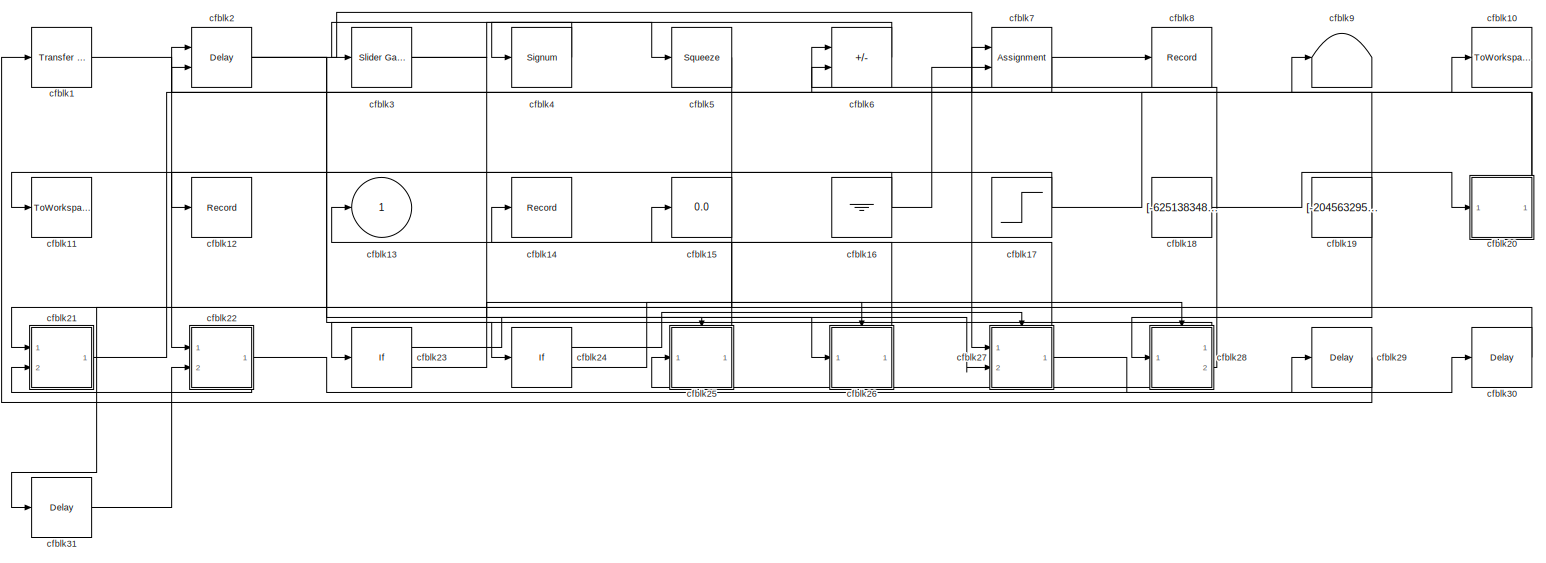
[diagram: root canvas - part 1/1, most of the canvas]
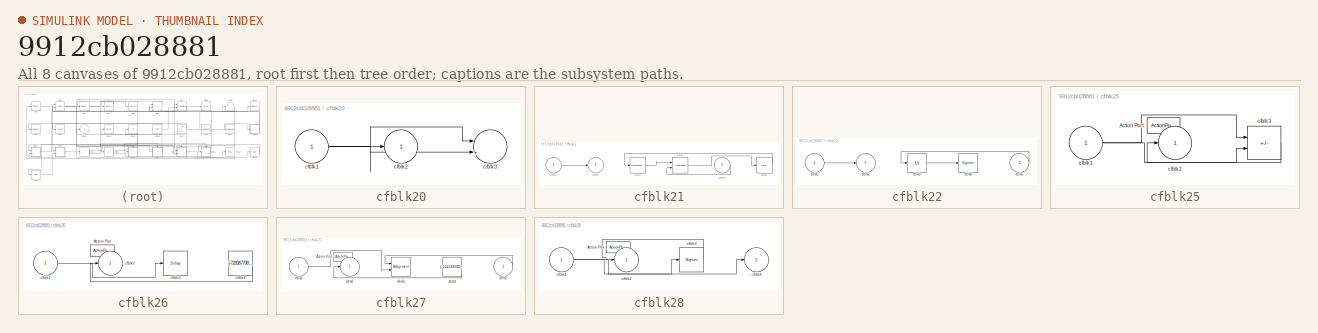
[diagram: thumbnail index - all 8 canvases of the model, root first then tree order]
MODEL slx_9912cb028881
KIND model
CONFIG AbsTol = auto
CONFIG EnableMultiTasking = off
CONFIG FixedStep = auto
CONFIG MaxStep = auto
CONFIG MinStep = auto
CONFIG RelTol = 1e-3
CONFIG SampleTimeConstraint = Unconstrained
CONFIG SolverName = VariableStepAuto
CONFIG StartTime = 0.0
CONFIG StopTime = 10.0
BLOCK [Reference] cfblk1  REF=simulink/Discrete/Transfer Fcn
Real Zero
  Ports = [1, 1]
  SourceBlock = simulink/Discrete/Transfer Fcn\nReal Zero
  SourceProductBaseCode = SL
  SourceType = Transfer Fcn Real Zero
BLOCK [ToWorkspace] cfblk10
  FixptAsFi = on
  MaxDataPoints = inf
  Ports = [1]
  SampleTime = -1
  SaveFormat = Timeseries
  VariableName = eprijlw
BLOCK [ToWorkspace] cfblk11
  FixptAsFi = on
  MaxDataPoints = inf
  Ports = [1]
  SampleTime = -1
  SaveFormat = Timeseries
  VariableName = lfuunqc
BLOCK [Record] cfblk12
  FileSettingsInternal = {"entries":[{"content":{"excelSettings":{"content":{},"type":"Streamout.ExcelSettings"}},"type":"Streamout.FileSettingStorage","uuid":"be9789c7-0946-41dc-ba80-fdfecf057616"}],"packageUris":["http://schema.mathworks.com/mf0/streamout_blocks/R2020a"],"version":"1.0"}
  Ports = [1]
  SignalsInternal = {"entries":[{"content":{"signals":[{"content":{"blockPath":["sampleModel191/cfblk12"],"channel":[],"dimensions":[1],"domain":"sampleModel191/cfblk12","lineColor":"#77ac30","plots":[1],"port":1,"sid":[""],"signalID":7140,"signalName":"cfblk17"},"type":"RecordBlkView.Signal","uuid":"3feb5f82-e466-445f-8270-1e8679e3d33b"}]},"type":"RecordBlkView.InputSignals","uuid":"5d828b83-df96-49b2-94c2-6ae34a61b...<+97ch>
  VisualizationBindings = {"sparklinesplugin":{"info":[{"bindingParametersList":[],"subplotID":1}]}}
BLOCK [Outport] cfblk13
BLOCK [Record] cfblk14
  FileSettingsInternal = {"entries":[{"content":{"excelSettings":{"content":{},"type":"Streamout.ExcelSettings"}},"type":"Streamout.FileSettingStorage","uuid":"e2498147-d1e1-4463-9837-c808039952d8"}],"packageUris":["http://schema.mathworks.com/mf0/streamout_blocks/R2020a"],"version":"1.0"}
  Ports = [1]
  SignalsInternal = {"entries":[{"content":{"signals":[{"content":{"blockPath":["sampleModel191/cfblk14"],"channel":[],"dimensions":[1],"domain":"sampleModel191/cfblk14","lineColor":"#edb120","plots":[1],"port":1,"sid":[""],"signalID":7132,"signalName":"cfblk25"},"type":"RecordBlkView.Signal","uuid":"96d69e8b-c9dd-4632-86a4-9ef49d9a27d5"}]},"type":"RecordBlkView.InputSignals","uuid":"17047321-6578-4322-be57-9c84a47ba...<+97ch>
  VisualizationBindings = {"sparklinesplugin":{"info":[{"bindingParametersList":[],"subplotID":1}]}}
BLOCK [Display] cfblk15
  Decimation = 1
  Ports = [1]
BLOCK [Ground] cfblk16
BLOCK [Step] cfblk17
  After = [-252859869.067699]
  Before = [445527667.725951]
  SampleTime = 0
  Time = [11.000000]
BLOCK [Constant] cfblk18
  SampleTime = 1
  Value = [-625138348.999720]
BLOCK [Constant] cfblk19
  SampleTime = 1
  Value = [-204563295.719265]
BLOCK [Delay] cfblk2
  InputPortMap = u0,e6
  Ports = [2, 1]
  SampleTime = 1
  ShowEnablePort = on
BLOCK [SubSystem] cfblk20
  Ports = [1, 1]
  RequestExecContextInheritance = off
BLOCK [Inport] cfblk20/cfblk1
BLOCK [Outport] cfblk20/cfblk2
BLOCK [Sum] cfblk20/cfblk3
  Inputs = |++
  Ports = [2, 1]
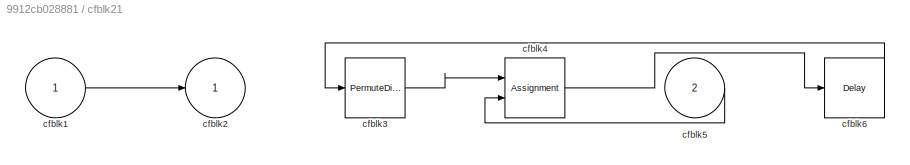
BLOCK [SubSystem] cfblk21
  Ports = [2, 1]
  RequestExecContextInheritance = off
BLOCK [Inport] cfblk21/cfblk1
BLOCK [Outport] cfblk21/cfblk2
BLOCK [PermuteDimensions] cfblk21/cfblk3
BLOCK [Assignment] cfblk21/cfblk4
  DiagnosticForDimensions = Warning
  IndexOptions = Index vector (dialog)
  Indices = 1
  OutputSizes = 1
  Ports = [2, 1]
BLOCK [Inport] cfblk21/cfblk5
  Port = 2
BLOCK [Delay] cfblk21/cfblk6
  InputPortMap = u0
  Ports = [1, 1]
  SampleTime = 1
BLOCK [SubSystem] cfblk22
  Ports = [2, 1]
  RequestExecContextInheritance = off
BLOCK [Inport] cfblk22/cfblk1
BLOCK [Outport] cfblk22/cfblk2
BLOCK [UnitDelay] cfblk22/cfblk3
  HasFrameUpgradeWarning = on
BLOCK [Signum] cfblk22/cfblk4
BLOCK [Inport] cfblk22/cfblk5
  Port = 2
BLOCK [If] cfblk23
  IfExpression = u1 >= 0
  Ports = [1, 2]
  SampleTime = 1
BLOCK [If] cfblk24
  IfExpression = u1 >= 0
  Ports = [1, 2]
  SampleTime = 1
BLOCK [SubSystem] cfblk25
  Ports = [1, 1, 0, 0, 0, 0, 0, 1]
  RequestExecContextInheritance = off
  TreatAsAtomicUnit = on
BLOCK [ActionPort] cfblk25/Action Port
  ActionPortLabel = if(u1 >= 0)
BLOCK [Inport] cfblk25/cfblk1
BLOCK [Outport] cfblk25/cfblk2
BLOCK [Sum] cfblk25/cfblk3
  IconShape = rectangular
  Inputs = +-
  Ports = [2, 1]
BLOCK [SubSystem] cfblk26
  Ports = [1, 1, 0, 0, 0, 0, 0, 1]
  RequestExecContextInheritance = off
  TreatAsAtomicUnit = on
BLOCK [ActionPort] cfblk26/Action Port
  ActionPortLabel = else
BLOCK [Inport] cfblk26/cfblk1
BLOCK [Outport] cfblk26/cfblk2
BLOCK [Delay] cfblk26/cfblk3
  InputPortMap = u0
  Ports = [1, 1]
BLOCK [Constant] cfblk26/cfblk4
  SampleTime = 1
  Value = [-728367798.985812]
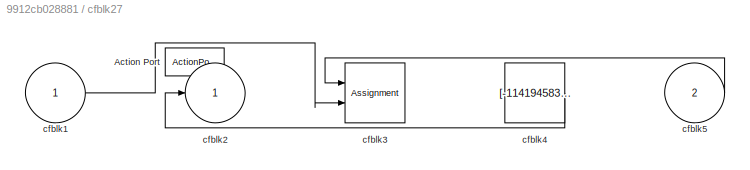
BLOCK [SubSystem] cfblk27
  Ports = [2, 1, 0, 0, 0, 0, 0, 1]
  RequestExecContextInheritance = off
  TreatAsAtomicUnit = on
BLOCK [ActionPort] cfblk27/Action Port
  ActionPortLabel = if(u1 >= 0)
BLOCK [Inport] cfblk27/cfblk1
BLOCK [Outport] cfblk27/cfblk2
BLOCK [Assignment] cfblk27/cfblk3
  DiagnosticForDimensions = Warning
  IndexOptions = Index vector (dialog)
  Indices = 1
  OutputSizes = 1
  Ports = [2, 1]
BLOCK [Constant] cfblk27/cfblk4
  SampleTime = 1
  Value = [-114194583.668243]
BLOCK [Inport] cfblk27/cfblk5
  Port = 2
BLOCK [SubSystem] cfblk28
  Ports = [1, 2, 0, 0, 0, 0, 0, 1]
  RequestExecContextInheritance = off
  TreatAsAtomicUnit = on
BLOCK [ActionPort] cfblk28/Action Port
  ActionPortLabel = else
BLOCK [Inport] cfblk28/cfblk1
BLOCK [Outport] cfblk28/cfblk2
BLOCK [Signum] cfblk28/cfblk3
BLOCK [Outport] cfblk28/cfblk4
  Port = 2
BLOCK [Delay] cfblk29
  InputPortMap = u0
  Ports = [1, 1]
  SampleTime = 1
BLOCK [Reference] cfblk3  REF=simulink/Math
Operations/Slider
Gain
  Ports = [1, 1]
  SourceBlock = simulink/Math\nOperations/Slider\nGain
  SourceProductBaseCode = SL
  SourceType = Slider Gain
BLOCK [Delay] cfblk30
  InputPortMap = u0
  Ports = [1, 1]
  SampleTime = 1
BLOCK [Delay] cfblk31
  InputPortMap = u0
  Ports = [1, 1]
  SampleTime = 1
BLOCK [Signum] cfblk4
BLOCK [Squeeze] cfblk5
BLOCK [Sum] cfblk6
  IconShape = rectangular
  Inputs = +-
  Ports = [2, 1]
BLOCK [Assignment] cfblk7
  DiagnosticForDimensions = Warning
  IndexOptions = Index vector (dialog)
  Indices = 1
  OutputSizes = 1
  Ports = [2, 1]
BLOCK [Record] cfblk8
  FileSettingsInternal = {"entries":[{"content":{"excelSettings":{"content":{},"type":"Streamout.ExcelSettings"}},"type":"Streamout.FileSettingStorage","uuid":"bd7b378f-c1a3-4038-8272-f5a9bb60a3b8"}],"packageUris":["http://schema.mathworks.com/mf0/streamout_blocks/R2020a"],"version":"1.0"}
  Ports = [1]
  SignalsInternal = {"entries":[{"content":{"signals":[{"content":{"blockPath":["sampleModel191/cfblk8"],"channel":[],"dimensions":[1],"domain":"sampleModel191/cfblk8","lineColor":"#7e2f8e","plots":[1],"port":1,"sid":[""],"signalID":7136,"signalName":"cfblk7"},"type":"RecordBlkView.Signal","uuid":"3014864a-0562-4ad7-a535-a08722fbc90b"}]},"type":"RecordBlkView.InputSignals","uuid":"e5762ca2-eda9-4507-8338-dc4311cc2cab...<+94ch>
  VisualizationBindings = {"sparklinesplugin":{"info":[{"bindingParametersList":[],"subplotID":1}]}}
BLOCK [Terminator] cfblk9
NET cfblk16:1 -> cfblk11:1, cfblk7:2
NET cfblk17:1 -> cfblk10:1, cfblk12:1
LINE cfblk18:1 -> cfblk20:1
NET cfblk19:1 -> cfblk28:1, cfblk9:1
LINE cfblk1:1 -> cfblk22:1
NET cfblk20/cfblk1:1 -> cfblk20/cfblk2:1, cfblk20/cfblk3:1, cfblk20/cfblk3:2
NET cfblk20:1 -> cfblk2:1, cfblk6:1
LINE cfblk21/cfblk1:1 -> cfblk21/cfblk2:1
LINE cfblk21/cfblk3:1 -> cfblk21/cfblk4:1
LINE cfblk21/cfblk4:1 -> cfblk21/cfblk6:1
LINE cfblk21/cfblk5:1 -> cfblk21/cfblk4:2
LINE cfblk21/cfblk6:1 -> cfblk21/cfblk3:1
LINE cfblk21:1 -> cfblk7:1
LINE cfblk22/cfblk1:1 -> cfblk22/cfblk2:1
LINE cfblk22/cfblk3:1 -> cfblk22/cfblk4:1
LINE cfblk22/cfblk5:1 -> cfblk22/cfblk3:1
NET cfblk22:1 -> cfblk21:2, cfblk29:1
LINE cfblk23:1 -> cfblk25:ifaction
LINE cfblk23:2 -> cfblk26:ifaction
LINE cfblk24:1 -> cfblk27:ifaction
LINE cfblk24:2 -> cfblk28:ifaction
NET cfblk25/cfblk1:1 -> cfblk25/cfblk3:1, cfblk25/cfblk3:2
LINE cfblk25/cfblk3:1 -> cfblk25/cfblk2:1
LINE cfblk25:1 -> cfblk14:1
LINE cfblk26/cfblk1:1 -> cfblk26/cfblk3:1
LINE cfblk26/cfblk4:1 -> cfblk26/cfblk2:1
LINE cfblk26:1 -> cfblk15:1
LINE cfblk27/cfblk1:1 -> cfblk27/cfblk3:2
LINE cfblk27/cfblk4:1 -> cfblk27/cfblk2:1
LINE cfblk27/cfblk5:1 -> cfblk27/cfblk3:1
NET cfblk27:1 -> cfblk13:1, cfblk30:1
NET cfblk28/cfblk1:1 -> cfblk28/cfblk3:1, cfblk28/cfblk4:1
LINE cfblk28/cfblk3:1 -> cfblk28/cfblk2:1
LINE cfblk28:1 -> cfblk23:1
NET cfblk28:2 -> cfblk25:1, cfblk6:2
LINE cfblk29:1 -> cfblk1:1
NET cfblk2:1 -> cfblk24:1, cfblk27:1, cfblk27:2
LINE cfblk30:1 -> cfblk21:1
LINE cfblk31:1 -> cfblk22:2
NET cfblk3:1 -> cfblk26:1, cfblk5:1
LINE cfblk4:1 -> cfblk3:1
LINE cfblk5:1 -> cfblk31:1
LINE cfblk6:1 -> cfblk4:1
NET cfblk7:1 -> cfblk2:2, cfblk8:1
note: NET lines group one-source signal fan-out (src -> all destinations, sorted); 1:1 wires keep LINE
